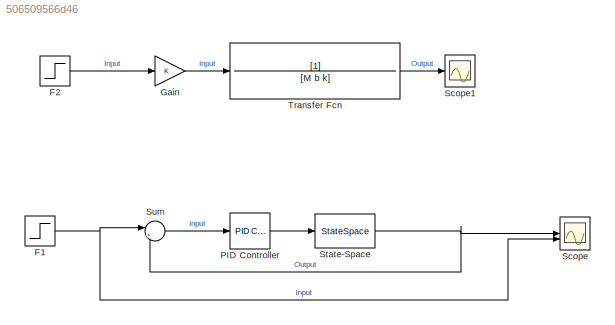
MODEL slx_506509566d46
KIND model
CONFIG AbsTol = auto
CONFIG EnableMultiTasking = off
CONFIG FixedStep = auto
CONFIG InitFcn = M =1;\nb =0.1;\nk = 20;\nF = 1;
CONFIG MaxStep = 0.01
CONFIG MinStep = auto
CONFIG RelTol = 1e-3
CONFIG SampleTimeConstraint = Unconstrained
CONFIG SolverName = VariableStepAuto
CONFIG StartTime = 0.0
CONFIG StopTime = 100
BLOCK [Step] F1
  After = F
  SampleTime = 0
  Time = 0
BLOCK [Step] F2
  After = F
  SampleTime = 0
  Time = 0
BLOCK [Gain] Gain
BLOCK [Reference] PID Controller  REF=slpidlib/PID Controller
  LibrarySourceBlock = simulink/Continuous/PID Controller
  SourceBlock = slpidlib/PID Controller
  SourceType = PID 1dof
BLOCK [Scope] Scope
  ActiveDisplayYMaximum = 1.2878164572475672
  ActiveDisplayYMinimum = -0.14309071747195187
  Floating = off
  GraphicalSettings = {"AxesScalingProperties":{"AlignXAxis":"Center","AlignYAxis":"Center","AutoScaleXAxisLimits":false,"AxesScaling":"Manual","AxesScalingNumUpdates":10,"ExpandOnly":true,"ScaleAxesLimitsAtStop":false,"XAxisDataRange":100,"YAxisDataRange":80},"DisplayProperties":{"ColorOrder":["auto","auto","auto","auto","auto","auto","auto","auto","auto","auto","auto","auto","auto","auto","auto","auto","auto","auto",...<+2113ch>
  MultipleDisplayCache = [{"MaxYLimMag":1.2878164572475672,"MaxYLimReal":1.2878164572475672,"MinYLimMag":0,"MinYLimReal":-0.14309071747195187,"PlotAsMagnitudePhase":false,"ShowGrid":true,"ShowLegend":false,"Title":"%<SignalLabel>","YLabel":""}]
  NumInputPorts = 2
  ScopeFrameLocation = window
  WasSavedAsWebScope = on
  WindowPosition = [153.000000,-627.000000,553.000000,879.000000,]
BLOCK [Scope] Scope1
  ActiveDisplayYMaximum = 0.11055634612731392
  ActiveDisplayYMinimum = -0.012284038458590432
  DataLoggingVariableName = ScopeData1
  Floating = off
  GraphicalSettings = {"Style":{"BackgroundColor":[0.12941176470588237,0.12941176470588237,0.12941176470588237],"AxesColor":[0.07058823529411765,0.07058823529411765,0.07058823529411765],"LabelsColor":[0.8509803921568627,0.8509803921568627,0.8509803921568627],"PreserveColors":false,"Visible":[true],"LineStyle":["-"],"LineWidth":[1.5],"BarWidth":[0.9],"LineColor":["auto"],"LineFaceAlpha":[1],"LineEdgeAlpha":[1],"Marker":...<+1999ch>
  MultipleDisplayCache = [{"MaxYLimMag":0.11055634612731392,"MaxYLimReal":0.11055634612731392,"MinYLimMag":0,"MinYLimReal":-0.012284038458590432,"PlotAsMagnitudePhase":false,"ShowGrid":true,"ShowLegend":false,"Title":"%<SignalLabel>","YLabel":""}]
  NumInputPorts = 1
  ScopeFrameLocation = window
  WasSavedAsWebScope = on
  WindowPosition = [37.000000,-109.000000,553.000000,527.000000,]
BLOCK [StateSpace] State-Space
  A = [ 0        1\n     -k/M   -b/M ]
  B = [0;\n1]
  C = [1 0]
  D = 0
  InitialCondition = 0
BLOCK [Sum] Sum
  Inputs = |+-
BLOCK [TransferFcn] Transfer Fcn
  Denominator = [M b k]
NET F1:1 -> Scope:2, Sum:1
LINE F2:1 -> Gain:1
LINE Gain:1 -> Transfer Fcn:1
LINE PID Controller:1 -> State-Space:1
NET State-Space:1 -> Scope:1, Sum:2
LINE Sum:1 -> PID Controller:1
LINE Transfer Fcn:1 -> Scope1:1
note: NET lines group one-source signal fan-out (src -> all destinations, sorted); 1:1 wires keep LINE
